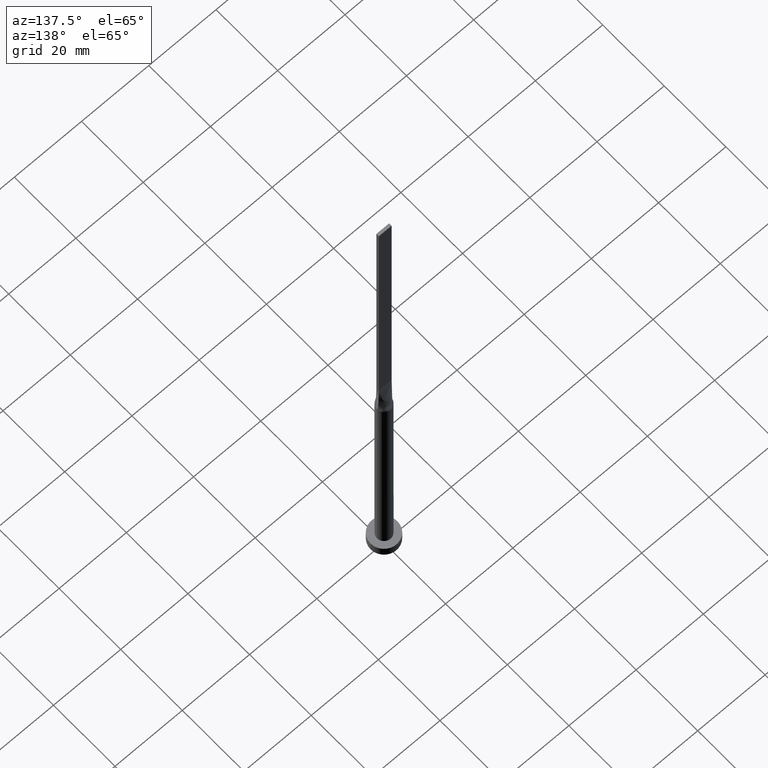
[diagram: clean part render]
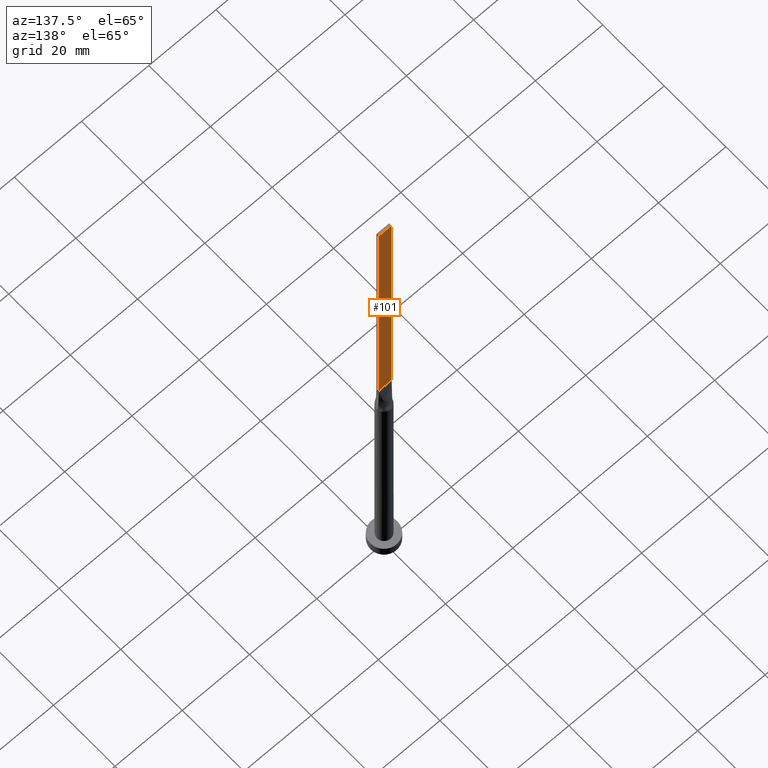
[diagram: same view with one face highlighted and labeled with its STEP entity id]
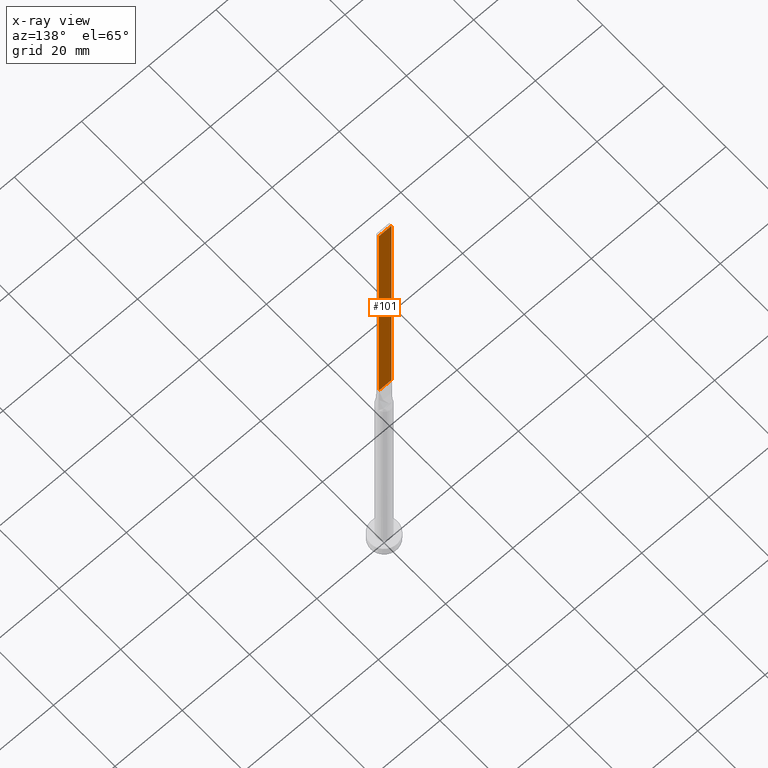
[diagram: x-ray of the same camera — body ghosted, the highlighted face saturated]
A machine part, auxiliary view. The second image highlights one B-rep face of the part: STEP entity #101.
The next image is the same camera in x-ray: the body ghosted, the highlighted face saturated — about 0% of this face is hidden behind the body in this view.
In plain terms, the highlighted planar face has unit normal (0, -1, 0).
Its self-contained STEP definition (entity closure, byte-faithful):
#9 = AXIS2_PLACEMENT_3D ( 'NONE', #568, #26, #203 ) ;
#26 = DIRECTION ( 'NONE',  ( 0.000000000000000000, -1.000000000000000000, 0.000000000000000000 ) ) ;
#54 = DIRECTION ( 'NONE',  ( -0.000000000000000000, -0.000000000000000000, -1.000000000000000000 ) ) ;
#93 = EDGE_CURVE ( 'NONE', #563, #363, #455, .T. ) ;
#101 = ADVANCED_FACE ( 'NONE', ( #410 ), #431, .F. ) ;
#147 = CARTESIAN_POINT ( 'NONE',  ( 1.899999999999999689, 0.4000000000000002442, 160.0000000000000000 ) ) ;
#155 = ORIENTED_EDGE ( 'NONE', *, *, #93, .F. ) ;
#181 = VECTOR ( 'NONE', #219, 1000.000000000000000 ) ;
#183 = EDGE_CURVE ( 'NONE', #202, #363, #395, .T. ) ;
#202 = VERTEX_POINT ( 'NONE', #444 ) ;
#203 = DIRECTION ( 'NONE',  ( 0.000000000000000000, -0.000000000000000000, -1.000000000000000000 ) ) ;
#219 = DIRECTION ( 'NONE',  ( -1.000000000000000000, -0.000000000000000000, -0.000000000000000000 ) ) ;
#246 = CARTESIAN_POINT ( 'NONE',  ( -1.899999999999999689, 0.4000000000000002442, 160.0000000000000000 ) ) ;
#284 = EDGE_LOOP ( 'NONE', ( #299, #155, #503, #462 ) ) ;
#299 = ORIENTED_EDGE ( 'NONE', *, *, #183, .T. ) ;
#301 = EDGE_CURVE ( 'NONE', #524, #202, #484, .T. ) ;
#305 = CARTESIAN_POINT ( 'NONE',  ( 1.899999999999999689, 0.4000000000000002442, 160.0000000000000000 ) ) ;
#322 = CARTESIAN_POINT ( 'NONE',  ( 1.899999999999999689, 0.4000000000000002442, 160.0000000000000000 ) ) ;
#348 = CARTESIAN_POINT ( 'NONE',  ( -1.899999999999999689, 0.4000000000000002442, 80.00000000000000000 ) ) ;
#363 = VERTEX_POINT ( 'NONE', #578 ) ;
#390 = VECTOR ( 'NONE', #464, 1000.000000000000000 ) ;
#394 = DIRECTION ( 'NONE',  ( -0.000000000000000000, -0.000000000000000000, -1.000000000000000000 ) ) ;
#395 = LINE ( 'NONE', #348, #181 ) ;
#410 = FACE_OUTER_BOUND ( 'NONE', #284, .T. ) ;
#431 = PLANE ( 'NONE',  #9 ) ;
#432 = LINE ( 'NONE', #322, #390 ) ;
#444 = CARTESIAN_POINT ( 'NONE',  ( 1.899999999999999689, 0.4000000000000002442, 80.00000000000000000 ) ) ;
#455 = LINE ( 'NONE', #246, #493 ) ;
#462 = ORIENTED_EDGE ( 'NONE', *, *, #301, .T. ) ;
#464 = DIRECTION ( 'NONE',  ( -1.000000000000000000, 0.000000000000000000, 0.000000000000000000 ) ) ;
#484 = LINE ( 'NONE', #305, #537 ) ;
#493 = VECTOR ( 'NONE', #54, 1000.000000000000000 ) ;
#503 = ORIENTED_EDGE ( 'NONE', *, *, #540, .F. ) ;
#510 = CARTESIAN_POINT ( 'NONE',  ( -1.899999999999999689, 0.4000000000000002442, 160.0000000000000000 ) ) ;
#524 = VERTEX_POINT ( 'NONE', #147 ) ;
#537 = VECTOR ( 'NONE', #394, 1000.000000000000000 ) ;
#540 = EDGE_CURVE ( 'NONE', #524, #563, #432, .T. ) ;
#563 = VERTEX_POINT ( 'NONE', #510 ) ;
#568 = CARTESIAN_POINT ( 'NONE',  ( 1.899999999999999689, 0.4000000000000002442, 160.0000000000000000 ) ) ;
#578 = CARTESIAN_POINT ( 'NONE',  ( -1.899999999999999689, 0.4000000000000002442, 80.00000000000000000 ) ) ;